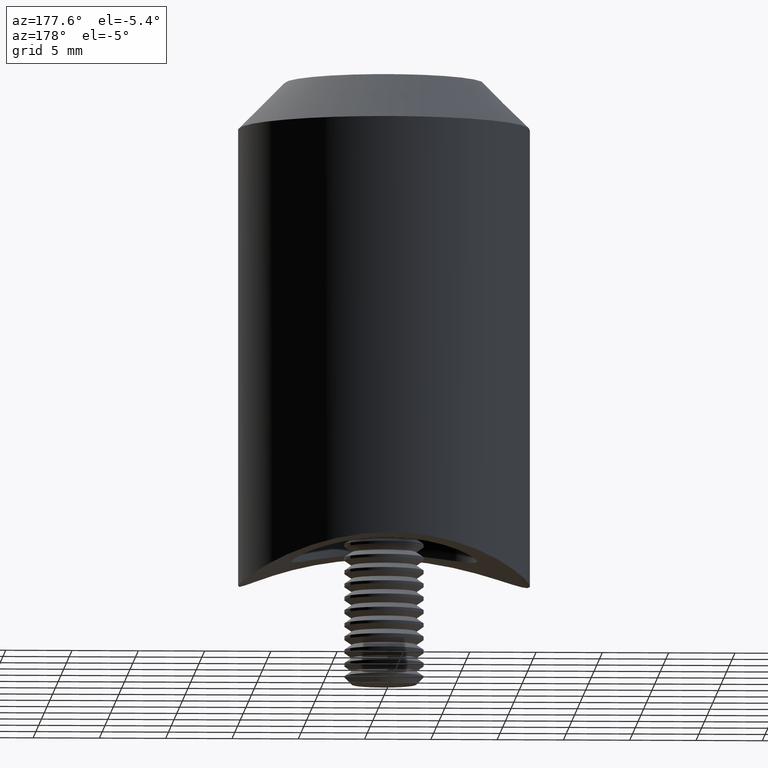
[diagram: clean part render]
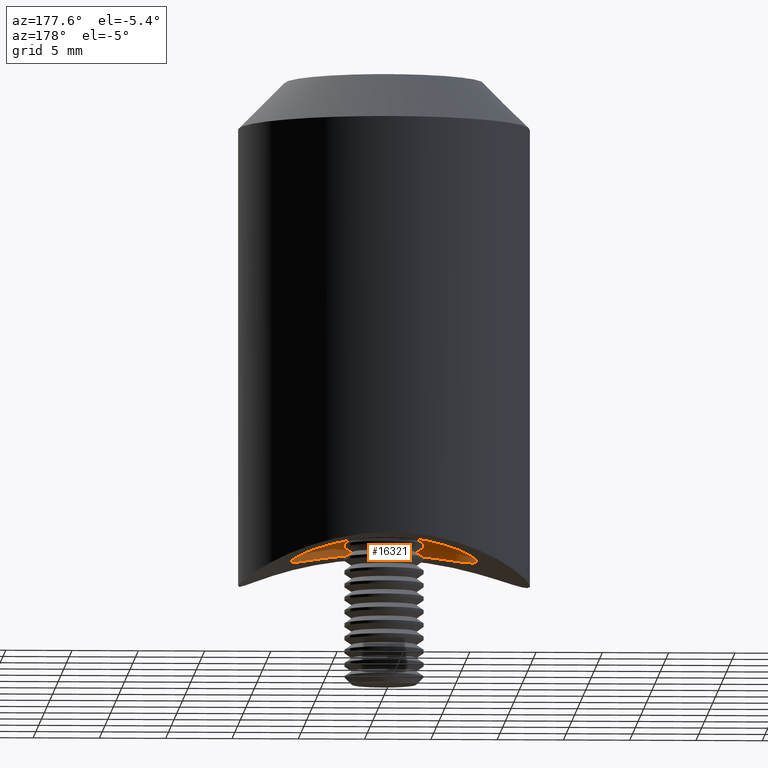
[diagram: same view with one face highlighted and labeled with its STEP entity id]
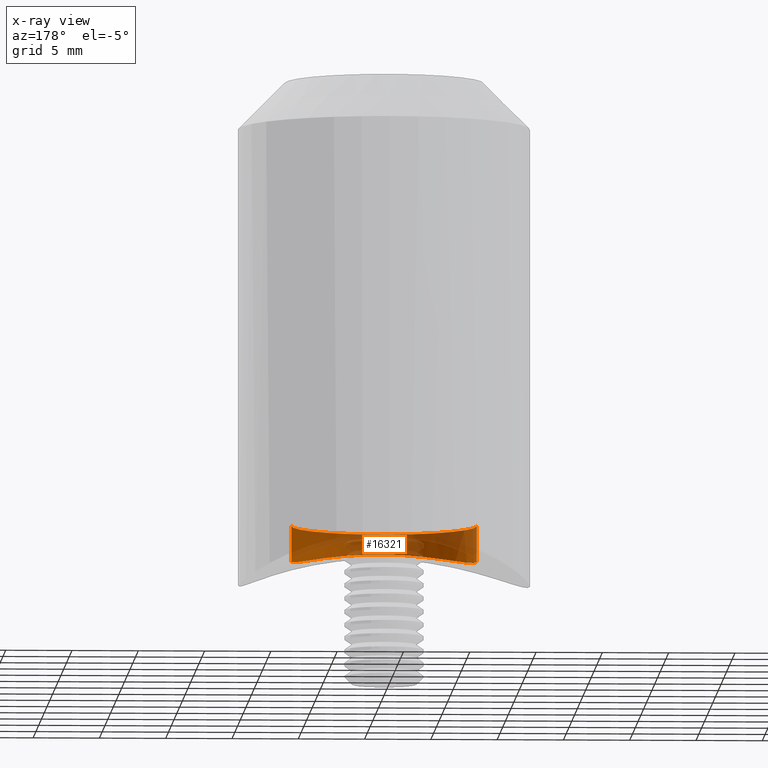
[diagram: x-ray of the same camera — body ghosted, the highlighted face saturated]
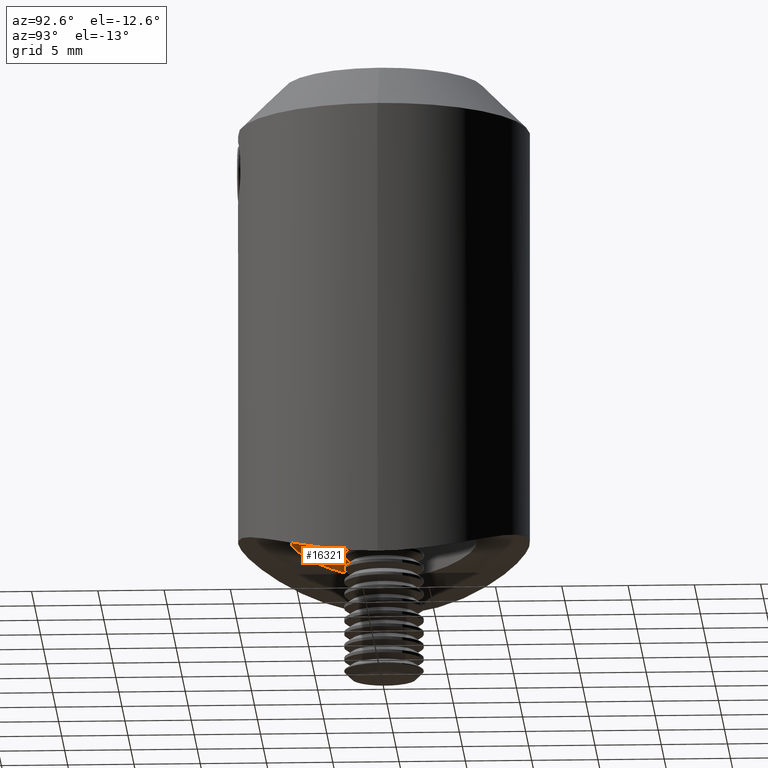
[diagram: same view with one face highlighted and labeled with its STEP entity id]
A machine part, auxiliary view. The second image highlights one B-rep face of the part: STEP entity #16321.
The next image is the same camera in x-ray: the body ghosted, the highlighted face saturated — about 72% of this face is hidden behind the body in this view.
A second angle (auxiliary view) of the same face is appended — the face is thin or edge-on in the first view.
In plain terms, the highlighted cylindrical surface (partial cylindrical patch) has radius 7 mm, axis along (-0, -0, -1).
Its self-contained STEP definition (entity closure, byte-faithful):
#373 = CARTESIAN_POINT ( 'NONE',  ( -6.999999999999999112, -2.621968049083548575E-16, -1.189003023337392939 ) ) ;
#379 = CARTESIAN_POINT ( 'NONE',  ( 4.793069701957304751, -5.106700297151350654, -0.5482715756363288895 ) ) ;
#418 = ORIENTED_EDGE ( 'NONE', *, *, #9616, .F. ) ;
#447 = CARTESIAN_POINT ( 'NONE',  ( 0.4602393651306323497, -7.000000000000004441, 3.028354544670936104E-15 ) ) ;
#448 = LINE ( 'NONE', #1903, #3639 ) ;
#506 = CARTESIAN_POINT ( 'NONE',  ( -6.069757924312860986, -3.516592431719292922, -0.8857725263947305860 ) ) ;
#511 = CARTESIAN_POINT ( 'NONE',  ( 6.943338309173728184, -0.9183187922218916110, -1.169257852765186678 ) ) ;
#1011 = CIRCLE ( 'NONE', #11100, 6.999999999999999112 ) ;
#1027 = EDGE_CURVE ( 'NONE', #18138, #8025, #18565, .T. ) ;
#1158 = FACE_OUTER_BOUND ( 'NONE', #8328, .T. ) ;
#1423 = CYLINDRICAL_SURFACE ( 'NONE', #8211, 6.999999999999999112 ) ;
#1618 = CARTESIAN_POINT ( 'NONE',  ( 4.622502717572147368, -5.261612904345514430, -0.5093020828997479876 ) ) ;
#1903 = CARTESIAN_POINT ( 'NONE',  ( 6.999999999999999112, 8.572527594031472204E-16, 0.000000000000000000 ) ) ;
#1954 = CARTESIAN_POINT ( 'NONE',  ( -5.688668117734375862, -4.085480503431443644, -0.7770593492622396292 ) ) ;
#2025 = CARTESIAN_POINT ( 'NONE',  ( -5.260839017932542383, -4.623392061158397404, -0.6625683936234562088 ) ) ;
#2084 = CARTESIAN_POINT ( 'NONE',  ( -5.108058787468032769, -4.791565503638304691, -0.6239236197253086313 ) ) ;
#2090 = CARTESIAN_POINT ( 'NONE',  ( 6.999999999999996447, -0.2294568571856468175, -1.189003023337392717 ) ) ;
#3187 = CARTESIAN_POINT ( 'NONE',  ( 6.288940820839092893, -3.107619915614944439, -0.9534444876971253091 ) ) ;
#3276 = VERTEX_POINT ( 'NONE', #6957 ) ;
#3536 = CARTESIAN_POINT ( 'NONE',  ( -5.551077185283673998, -4.270564764385034628, -0.7391088600173929546 ) ) ;
#3582 = DIRECTION ( 'NONE',  ( -0.000000000000000000, -0.000000000000000000, -1.000000000000000000 ) ) ;
#3639 = VECTOR ( 'NONE', #18246, 1000.000000000000000 ) ;
#3668 = CARTESIAN_POINT ( 'NONE',  ( -3.109540433735531462, -6.287967465322433114, -0.2249963781626745929 ) ) ;
#4636 = ORIENTED_EDGE ( 'NONE', *, *, #12583, .F. ) ;
#4773 = CARTESIAN_POINT ( 'NONE',  ( 3.521473596967356734, -6.066761257851059241, -0.2909933970996179675 ) ) ;
#5038 = CARTESIAN_POINT ( 'NONE',  ( -6.953898511183028042, -0.9238987657836603695, -1.172710100824252200 ) ) ;
#5313 = CARTESIAN_POINT ( 'NONE',  ( -5.327213598271221762E-16, -6.999999999999999112, 1.666791759375642716E-15 ) ) ;
#5380 = CARTESIAN_POINT ( 'NONE',  ( -0.4605050746028463982, -7.000000000000002665, 2.968850480126321900E-15 ) ) ;
#5445 = CARTESIAN_POINT ( 'NONE',  ( -1.596399821333795321, -6.819443552187294699, -0.05897392174351170913 ) ) ;
#6160 = EDGE_CURVE ( 'NONE', #7954, #18673, #448, .T. ) ;
#6627 = CARTESIAN_POINT ( 'NONE',  ( -6.818923266335682243, -1.598392581983038463, -1.126521308198942029 ) ) ;
#6741 = CARTESIAN_POINT ( 'NONE',  ( -6.999999999999999112, 0.000000000000000000, 0.000000000000000000 ) ) ;
#6957 = CARTESIAN_POINT ( 'NONE',  ( -6.999999999999999112, 0.000000000000000000, 1.500000000000000000 ) ) ;
#7014 = DIRECTION ( 'NONE',  ( -1.000000000000000000, 0.000000000000000000, 0.000000000000000000 ) ) ;
#7027 = CARTESIAN_POINT ( 'NONE',  ( -1.822709779364241500, -6.762448904580941722, -0.07734257559336250865 ) ) ;
#7107 = CARTESIAN_POINT ( 'NONE',  ( -5.327213598271221762E-16, -6.999999999999999112, 1.666791759375642716E-15 ) ) ;
#7946 = CARTESIAN_POINT ( 'NONE',  ( 3.117695353576111827, -6.284329734926883404, -0.2261043208746771060 ) ) ;
#7954 = VERTEX_POINT ( 'NONE', #8591 ) ;
#8025 = VERTEX_POINT ( 'NONE', #7107 ) ;
#8211 = AXIS2_PLACEMENT_3D ( 'NONE', #16692, #11929, #7014 ) ;
#8217 = CARTESIAN_POINT ( 'NONE',  ( -6.628223578823718931, -2.262724182244174820, -1.062679243208450419 ) ) ;
#8328 = EDGE_LOOP ( 'NONE', ( #4636, #10503, #16746, #15600, #418 ) ) ;
#8354 = CARTESIAN_POINT ( 'NONE',  ( -6.762876291949825536, -1.821200921252310589, -1.107500420988794199 ) ) ;
#8503 = CARTESIAN_POINT ( 'NONE',  ( 5.563158064210917964, -4.272963118822564965, -0.7412473843383737826 ) ) ;
#8591 = CARTESIAN_POINT ( 'NONE',  ( 6.999999999999999112, 8.572527594031472204E-16, 1.500000000000000000 ) ) ;
#9041 = DIRECTION ( 'NONE',  ( -1.000000000000000000, 0.000000000000000000, 0.000000000000000000 ) ) ;
#9616 = EDGE_CURVE ( 'NONE', #3276, #18138, #15411, .T. ) ;
#9870 = CARTESIAN_POINT ( 'NONE',  ( -6.285053946833492944, -3.115796421667190508, -0.9522256001040754203 ) ) ;
#9950 = CARTESIAN_POINT ( 'NONE',  ( 6.069403444348308696, -3.516999188505129492, -0.8856792369036048385 ) ) ;
#10465 = EDGE_CURVE ( 'NONE', #8025, #18673, #20192, .T. ) ;
#10503 = ORIENTED_EDGE ( 'NONE', *, *, #6160, .T. ) ;
#11100 = AXIS2_PLACEMENT_3D ( 'NONE', #12204, #12138, #9041 ) ;
#11205 = VECTOR ( 'NONE', #3582, 1000.000000000000000 ) ;
#11608 = CARTESIAN_POINT ( 'NONE',  ( 6.639059037773450633, -2.265165177399119489, -1.065534974732085249 ) ) ;
#11929 = DIRECTION ( 'NONE',  ( -0.000000000000000000, -0.000000000000000000, -1.000000000000000000 ) ) ;
#11945 = CARTESIAN_POINT ( 'NONE',  ( -6.999999999999999112, -2.621968049083548575E-16, -1.189003023337392939 ) ) ;
#12138 = DIRECTION ( 'NONE',  ( -0.000000000000000000, -0.000000000000000000, -1.000000000000000000 ) ) ;
#12204 = CARTESIAN_POINT ( 'NONE',  ( 0.000000000000000000, 0.000000000000000000, 1.500000000000000000 ) ) ;
#12583 = EDGE_CURVE ( 'NONE', #7954, #3276, #1011, .T. ) ;
#12646 = CARTESIAN_POINT ( 'NONE',  ( 4.269903015472991115, -5.551579051728598557, -0.4336705239198984096 ) ) ;
#13031 = CARTESIAN_POINT ( 'NONE',  ( 6.999999999999999112, 8.560259022009927031E-16, -1.189003023337390053 ) ) ;
#13047 = CARTESIAN_POINT ( 'NONE',  ( -4.627092852526208056, -5.272140925814184698, -0.5084861146746786353 ) ) ;
#13110 = CARTESIAN_POINT ( 'NONE',  ( -3.511685228097967570, -6.072878628046489702, -0.2892511066595556124 ) ) ;
#13114 = CARTESIAN_POINT ( 'NONE',  ( 6.772704088845378223, -1.828587869955549339, -1.110707287804855170 ) ) ;
#13179 = CARTESIAN_POINT ( 'NONE',  ( -7.000000000000000000, -0.4662002295235364024, -1.189003023337392495 ) ) ;
#13184 = CARTESIAN_POINT ( 'NONE',  ( 4.087414058591548383, -5.687234690700162076, -0.3968781268965396736 ) ) ;
#14650 = CARTESIAN_POINT ( 'NONE',  ( -4.276527186075488096, -5.560854538556331050, -0.4321722934646495817 ) ) ;
#14796 = CARTESIAN_POINT ( 'NONE',  ( 1.827963776476209334, -6.772693825404230594, -0.07413733082724563439 ) ) ;
#14992 = CARTESIAN_POINT ( 'NONE',  ( -2.263042761920027957, -6.628093510548818124, -0.1199723656169686403 ) ) ;
#15411 = LINE ( 'NONE', #6741, #11205 ) ;
#15600 = ORIENTED_EDGE ( 'NONE', *, *, #1027, .F. ) ;
#15832 = CARTESIAN_POINT ( 'NONE',  ( 0.9275961494175506417, -6.953445088901144544, -0.01549881473623478979 ) ) ;
#16321 = ADVANCED_FACE ( 'NONE', ( #1158 ), #1423, .F. ) ;
#16376 = CARTESIAN_POINT ( 'NONE',  ( 6.999999999999999112, 8.560259022009927031E-16, -1.189003023337390053 ) ) ;
#16692 = CARTESIAN_POINT ( 'NONE',  ( 0.000000000000000000, 0.000000000000000000, 0.000000000000000000 ) ) ;
#16708 = CARTESIAN_POINT ( 'NONE',  ( -0.9171726201023974179, -6.954998590152847271, -0.01498882442503316446 ) ) ;
#16746 = ORIENTED_EDGE ( 'NONE', *, *, #10465, .F. ) ;
#17901 = CARTESIAN_POINT ( 'NONE',  ( 6.988745583613232171, -0.4590113803751282862, -1.185055258328212346 ) ) ;
#17970 = CARTESIAN_POINT ( 'NONE',  ( 5.275945190243009897, -4.622988505343574417, -0.6643232720341591957 ) ) ;
#18100 = CARTESIAN_POINT ( 'NONE',  ( -5.327213598271221762E-16, -6.999999999999999112, 1.666791759375642716E-15 ) ) ;
#18138 = VERTEX_POINT ( 'NONE', #11945 ) ;
#18246 = DIRECTION ( 'NONE',  ( -0.000000000000000000, -0.000000000000000000, -1.000000000000000000 ) ) ;
#18565 = B_SPLINE_CURVE_WITH_KNOTS ( 'NONE', 3,
 ( #373, #13179, #5038, #6627, #8354, #8217, #19263, #9870, #506, #1954, #3536, #2025, #2084, #13047, #14650, #13110, #3668, #19741, #14992, #7027, #5445, #16708, #5380, #18100 ),
 .UNSPECIFIED., .F., .F.,
 ( 4, 2, 2, 2, 2, 2, 2, 2, 2, 2, 2, 4 ),
 ( 2.074370954521769873E-19, 0.001377923937023655581, 0.002066885905535483046, 0.002755847874047311595, 0.004133771811070967826, 0.004822733779582795074, 0.005511695748094623190, 0.006889619685118275952, 0.008267543622141926979, 0.008956505590653753360, 0.009645467559165576271, 0.01102339149618922383 ),
 .UNSPECIFIED. ) ;
#18673 = VERTEX_POINT ( 'NONE', #13031 ) ;
#18996 = CARTESIAN_POINT ( 'NONE',  ( 6.908847785033296773, -1.149406738949871221, -1.157292526430703683 ) ) ;
#19263 = CARTESIAN_POINT ( 'NONE',  ( -6.549529692872770426, -2.481165737339659394, -1.036859653860962460 ) ) ;
#19407 = CARTESIAN_POINT ( 'NONE',  ( 2.265985200397384158, -6.639136661236632264, -0.1170771630657911760 ) ) ;
#19741 = CARTESIAN_POINT ( 'NONE',  ( -2.478250430666408377, -6.550589205666855541, -0.1442815495603886056 ) ) ;
#20192 = B_SPLINE_CURVE_WITH_KNOTS ( 'NONE', 3,
 ( #5313, #447, #15832, #14796, #19407, #7946, #4773, #13184, #12646, #1618, #379, #17970, #8503, #9950, #3187, #11608, #13114, #18996, #511, #17901, #2090, #16376 ),
 .UNSPECIFIED., .F., .F.,
 ( 4, 2, 2, 2, 2, 2, 2, 2, 2, 2, 4 ),
 ( 0.01102339149618922383, 0.01240052037695346838, 0.01377764925771771468, 0.01515477813848195923, 0.01584334257886408151, 0.01653190701924620379, 0.01790903590001044834, 0.01928616478077468943, 0.02066329366153893399, 0.02135185810192105627, 0.02204042254230317854 ),
 .UNSPECIFIED. ) ;